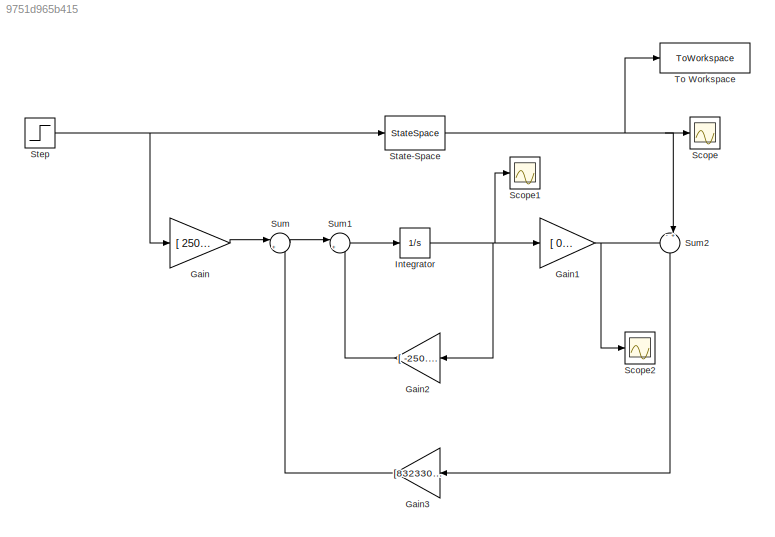
MODEL slx_9751d965b415
KIND model
CONFIG AbsTol = auto
CONFIG EnableMultiTasking = off
CONFIG FixedStep = auto
CONFIG MaxStep = auto
CONFIG MinStep = auto
CONFIG RelTol = 1e-3
CONFIG SampleTimeConstraint = Unconstrained
CONFIG SolverName = VariableStepAuto
CONFIG StartTime = 0.0
CONFIG StopTime = 10.0
BLOCK [Gain] Gain
  Gain = [   250\n     0\n     0]
  Multiplication = Matrix(K*u) (u vector)
BLOCK [Gain] Gain1
  Gain = [     0     0     1]
  Multiplication = Matrix(K*u) (u vector)
BLOCK [Gain] Gain2
  Gain = [ -250.0000  -25.0000         0\n   50.0000   -1.5000         0\n         0    1.0000         0]
  Multiplication = Matrix(K*u) (u vector)
BLOCK [Gain] Gain3
  Gain = [832330; 691770; 1550]
  Multiplication = Matrix(K*u) (u vector)
BLOCK [Integrator] Integrator
BLOCK [Scope] Scope
  Floating = off
  NumInputPorts = 1
  ScopeSpecificationString = Simulink.scopes.TimeScopeBlockCfg('CurrentConfiguration', extmgr.ConfigurationSet(extmgr.Configuration('Core','General UI',true),extmgr.Configuration('Core','Source UI',true),extmgr.Configuration('Sources','WiredSimulink',true),extmgr.Configuration('Visuals','Time Domain',true,'SerializedDisplays',{struct('MinYLimReal','-9.43699','MaxYLimReal','85.23292','YLabelReal','','MinYLimMag','0.00000','Max...<+1453ch>
BLOCK [Scope] Scope1
  Floating = off
  NumInputPorts = 1
  ScopeSpecificationString = Simulink.scopes.TimeScopeBlockCfg('CurrentConfiguration', extmgr.ConfigurationSet(extmgr.Configuration('Core','General UI',true),extmgr.Configuration('Core','Source UI',true),extmgr.Configuration('Sources','WiredSimulink',true,'DataLoggingVariableName','ScopeData1'),extmgr.Configuration('Visuals','Time Domain',true,'SerializedDisplays',{struct('MinYLimReal','-3.05869','MaxYLimReal','75.76593','YLa...<+1571ch>
BLOCK [Scope] Scope2
  Floating = off
  NumInputPorts = 1
  ScopeSpecificationString = Simulink.scopes.TimeScopeBlockCfg('CurrentConfiguration', extmgr.ConfigurationSet(extmgr.Configuration('Core','General UI',true),extmgr.Configuration('Core','Source UI',true),extmgr.Configuration('Sources','WiredSimulink',true,'DataLoggingVariableName','ScopeData2'),extmgr.Configuration('Visuals','Time Domain',true,'SerializedDisplays',{struct('MinYLimReal','-9.4695','MaxYLimReal','85.22551','YLab...<+1484ch>
BLOCK [StateSpace] State-Space
  A = [-250.00 -25.00 0; 50.00 -1.50 0;\n0 1.00 0]
  B = [\n   250;\n     0;\n     0]
  C = [     0     0     1]
  D = 0
  InitialCondition = [0.01;0.02;0.03]
BLOCK [Step] Step
  Before = 1
  SampleTime = 0
BLOCK [Sum] Sum
  Inputs = |++
BLOCK [Sum] Sum1
  Inputs = |++
BLOCK [Sum] Sum2
  Inputs = -+|
  NameLocation = left
BLOCK [ToWorkspace] To Workspace
  FixptAsFi = on
  MaxDataPoints = inf
  SampleTime = -1
  SaveFormat = Timeseries
  VariableName = simout
NET Gain1:1 -> Scope2:1, Sum2:1
LINE Gain2:1 -> Sum1:2
LINE Gain3:1 -> Sum:2
LINE Gain:1 -> Sum:1
NET Integrator:1 -> Gain1:1, Gain2:1, Scope1:1
NET State-Space:1 -> Scope:1, Sum2:2, To Workspace:1
NET Step:1 -> Gain:1, State-Space:1
LINE Sum1:1 -> Integrator:1
LINE Sum2:1 -> Gain3:1
LINE Sum:1 -> Sum1:1
note: NET lines group one-source signal fan-out (src -> all destinations, sorted); 1:1 wires keep LINE
